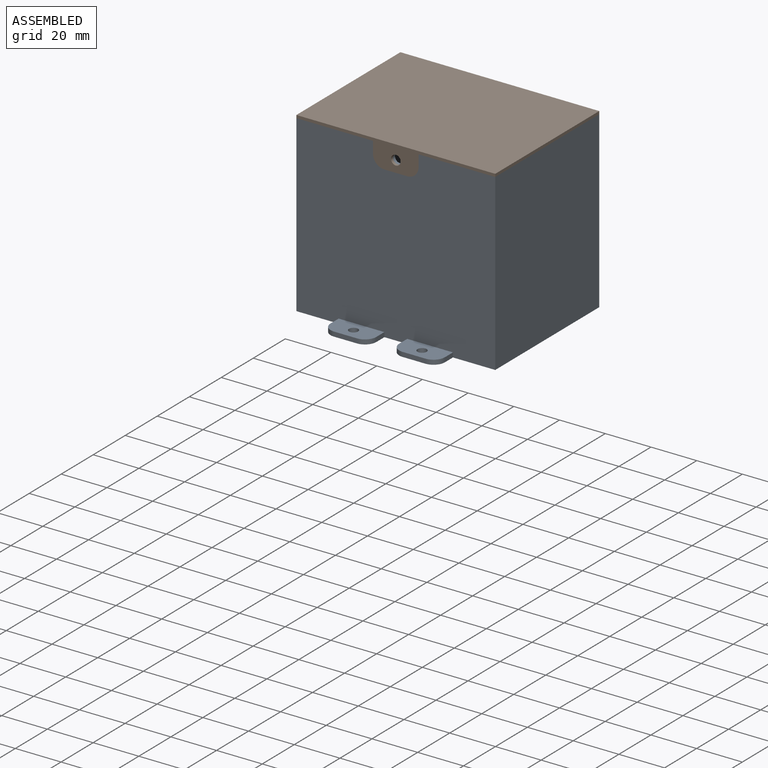
[diagram: assembled view]
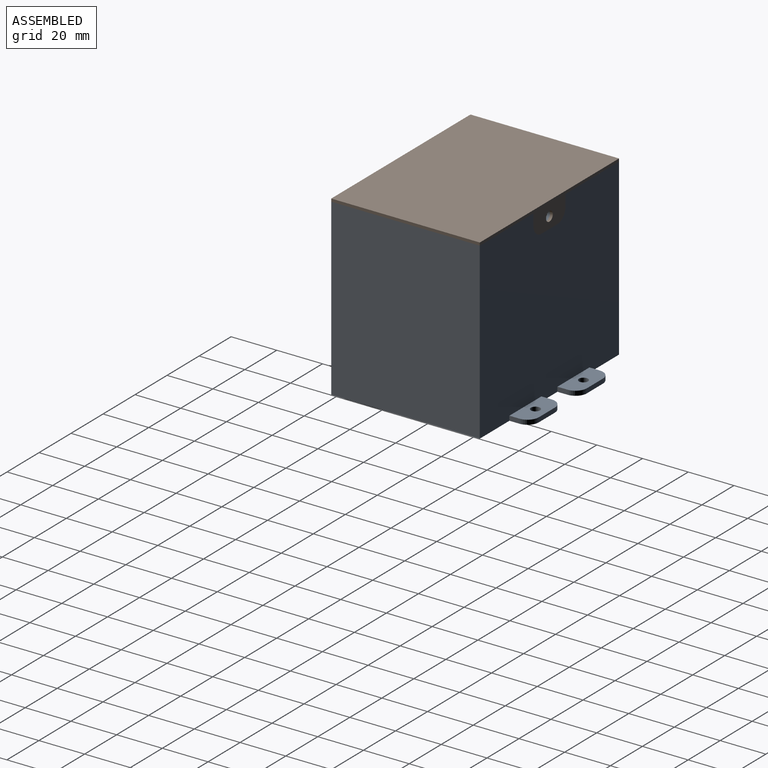
[diagram: assembled view, second angle]
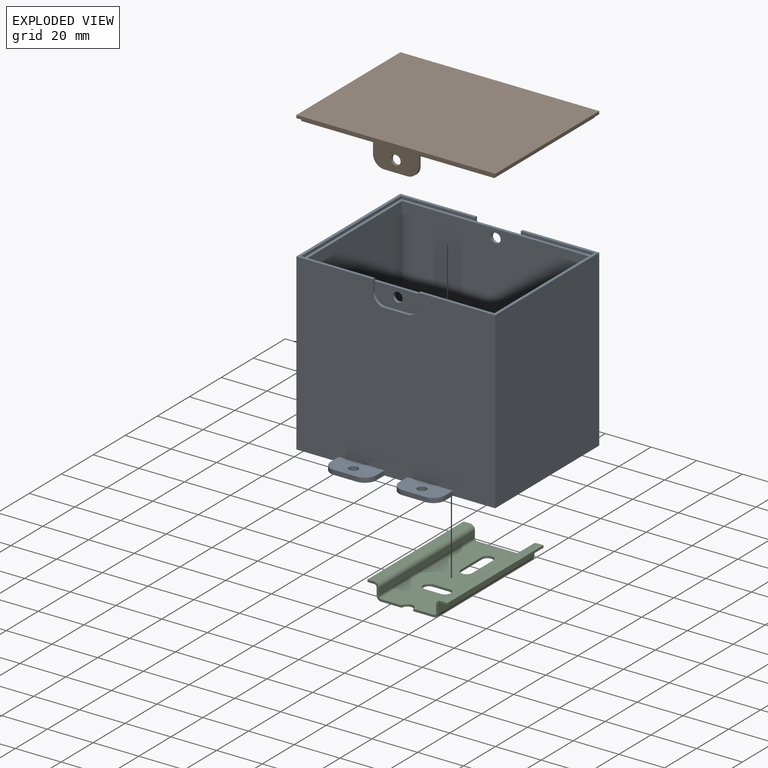
[diagram: exploded view]
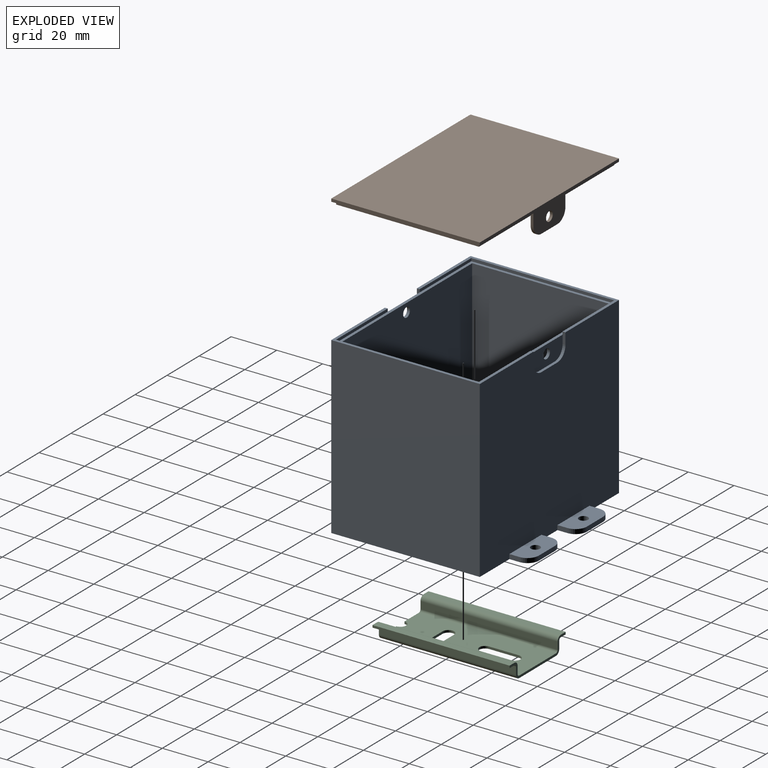
[diagram: exploded view, second angle]
ASSEMBLY  parts=3 mates=3
PART A: 61 faces, bbox 87x84.4x76.3 mm
  f0: plane 20x8.75mm, normal (0,-1,0), area 150.4mm2, adj f47,f48,f49,f50,f51,f52,f60
  f1: plane 65x33.5mm, normal (0,0,1), area 161.9mm2, adj f7,f8,f9,f41,f51,f54,f55,f57
  f2: plane 65x33.5mm, normal (0,0,1), area 161.9mm2, adj f7,f9,f10,f45,f47,f56,f58,f59
  f3: plane 82x72.25mm, normal (0,-1,0), area 5910.6mm2, adj f4,f6,f12,f53,f60
  f4: plane 72.25x60mm, normal (-1,0,0), area 4335mm2, adj f3,f5,f12,f60
  f5: plane 82x72.25mm, normal (0,1,0), area 5910.6mm2, adj f4,f6,f12,f52,f60
  f6: plane 72.25x60mm, normal (1,0,0), area 4335mm2, adj f3,f5,f12,f60
  f7: plane 87x76.3mm, normal (0,1,0), area 6368.8mm2, adj f1,f2,f8,f10,f11,f13,f14,f15
  f8: plane 76.3x65mm, normal (1,0,0), area 4959.5mm2, adj f1,f7,f9,f11
  f9: plane 87x76.3mm, normal (0,-1,0), area 6368.8mm2, adj f1,f2,f8,f10,f11,f28,f29,f33
  f10: plane 76.3x65mm, normal (-1,0,0), area 4959.5mm2, adj f2,f7,f9,f11
  f11: plane 87x84.4mm, normal (0,0,-1), area 6337.8mm2, adj f7,f8,f9,f10,f13,f14,f16,f17
  f12: plane 82x60mm, normal (0,0,1), area 4920mm2, adj f3,f4,f5,f6
  f13: plane 4.4x2mm, normal (1,0,0), area 8.8mm2, adj f7,f11,f15,f16
  f14: plane 4.4x2mm, normal (-1,0,0), area 8.8mm2, adj f7,f11,f15,f18
  f15: plane 20x9.4mm, normal (0,0,1), area 164.7mm2, adj f7,f13,f14,f16,f17,f18,f19
  f16: cylinder r=5mm len=5mm, axis (0,0,-1), area 15.7mm2, adj f11,f13,f15,f17
  f17: plane 10x2mm, normal (0,1,0), area 20mm2, adj f11,f15,f16,f18
  f18: cylinder r=5mm len=5mm, axis (0,0,-1), area 15.7mm2, adj f11,f14,f15,f17
  f19: cylinder r=2mm len=4mm, axis (0,0,-1), area 25.1mm2, adj f11,f15
  f20: plane 20x9.4mm, normal (0,0,1), area 164.7mm2, adj f7,f21,f22,f23,f24,f25,f26
  f21: plane 4.4x2mm, normal (-1,0,0), area 8.8mm2, adj f7,f11,f20,f23
  f22: plane 4.4x2mm, normal (1,0,0), area 8.8mm2, adj f7,f11,f20,f24
  f23: cylinder r=5mm len=5mm, axis (0,0,-1), area 15.7mm2, adj f11,f20,f21,f26
  f24: cylinder r=5mm len=5mm, axis (0,0,-1), area 15.7mm2, adj f11,f20,f22,f26
  f25: cylinder r=2mm len=4mm, axis (0,0,-1), area 25.1mm2, adj f11,f20
  f26: plane 10x2mm, normal (0,1,0), area 20mm2, adj f11,f20,f23,f24
  f27: cylinder r=5mm len=5mm, axis (0,0,-1), area 15.7mm2, adj f11,f28,f32,f33
  f28: plane 5x2mm, normal (1,0,0), area 10mm2, adj f9,f11,f27,f33
  f29: plane 5x2mm, normal (-1,0,0), area 10mm2, adj f9,f11,f30,f33
  f30: cylinder r=5mm len=5mm, axis (0,0,-1), area 15.7mm2, adj f11,f29,f32,f33
  f31: cylinder r=2mm len=4mm, axis (0,0,-1), area 25.1mm2, adj f11,f33
  f32: plane 10x2mm, normal (0,-1,0), area 20mm2, adj f11,f27,f30,f33
  f33: plane 20x10mm, normal (0,0,1), area 176.7mm2, adj f9,f27,f28,f29,f30,f31,f32
  f34: plane 5x2mm, normal (-1,0,0), area 10mm2, adj f9,f11,f35,f40
  f35: cylinder r=5mm len=5mm, axis (0,0,-1), area 15.7mm2, adj f11,f34,f36,f40
  f36: plane 10x2mm, normal (0,-1,0), area 20mm2, adj f11,f35,f37,f40
  f37: cylinder r=5mm len=5mm, axis (0,0,-1), area 15.7mm2, adj f11,f36,f38,f40
  f38: plane 5x2mm, normal (1,0,0), area 10mm2, adj f9,f11,f37,f40
  f39: cylinder r=2mm len=4mm, axis (0,0,-1), area 25.1mm2, adj f11,f40
  f40: plane 20x10mm, normal (0,0,1), area 176.7mm2, adj f9,f34,f35,f36,f37,f38,f39
  f41: plane 5x1.25mm, normal (-1,0,0), area 6.2mm2, adj f1,f7,f42,f46,f54
  f42: cylinder r=5mm len=5mm, axis (0,1,0), area 9.8mm2, adj f7,f41,f43,f46
  f43: plane 10x1.25mm, normal (0,0,1), area 12.5mm2, adj f7,f42,f44,f46
  f44: cylinder r=5mm len=5mm, axis (0,1,0), area 9.8mm2, adj f7,f43,f45,f46
  f45: plane 5x1.25mm, normal (1,0,0), area 6.2mm2, adj f2,f7,f44,f46,f58
  f46: plane 20x8.75mm, normal (0,1,0), area 150.4mm2, adj f41,f42,f43,f44,f45,f53,f60
  f47: plane 5x1.25mm, normal (1,0,0), area 6.3mm2, adj f0,f2,f9,f48,f56
  f48: cylinder r=5mm len=5mm, axis (0,-1,0), area 9.8mm2, adj f0,f9,f47,f49
  f49: plane 10x1.25mm, normal (0,0,1), area 12.5mm2, adj f0,f9,f48,f50
  f50: cylinder r=5mm len=5mm, axis (0,-1,0), area 9.8mm2, adj f0,f9,f49,f51
  f51: plane 5x1.25mm, normal (-1,0,0), area 6.3mm2, adj f0,f1,f9,f50,f55
  f52: cylinder r=2.1mm len=4.2mm, axis (0,-1,0), area 16.5mm2, adj f0,f5
  f53: cylinder r=2.1mm len=4.2mm, axis (0,-1,0), area 16.5mm2, adj f3,f46
  f54: plane 32.25x1.25mm, normal (0,-1,0), area 40.3mm2, adj f1,f41,f57,f60
  f55: plane 32.25x1.25mm, normal (0,1,0), area 40.3mm2, adj f1,f51,f57,f60
  f56: plane 32.25x1.25mm, normal (0,1,0), area 40.3mm2, adj f2,f47,f59,f60
  f57: plane 62.5x1.25mm, normal (-1,0,0), area 78.1mm2, adj f1,f54,f55,f60
  f58: plane 32.25x1.25mm, normal (0,-1,0), area 40.3mm2, adj f2,f45,f59,f60
  f59: plane 62.5x1.25mm, normal (1,0,0), area 78.1mm2, adj f2,f56,f58,f60
  f60: plane 84.5x62.5mm, normal (0,0,1), area 361.3mm2, adj f0,f3,f4,f5,f6,f46,f54,f55
PART B: 28 faces, bbox 87x65x11.3 mm
  f0: plane 65x33.5mm, normal (0,0,-1), area 161.9mm2, adj f1,f4,f7,f9,f11,f12,f19,f21
  f1: plane 32.25x1.25mm, normal (0,1,0), area 40.3mm2, adj f0,f4,f8,f21
  f2: plane 32.25x1.25mm, normal (0,-1,0), area 40.3mm2, adj f3,f6,f8,f15
  f3: plane 65x33.5mm, normal (0,0,-1), area 161.9mm2, adj f2,f5,f6,f9,f10,f11,f15,f20
  f4: plane 62.5x1.25mm, normal (1,0,0), area 78.1mm2, adj f0,f1,f7,f8
  f5: plane 32.25x1.25mm, normal (0,1,0), area 40.3mm2, adj f3,f6,f8,f20
  f6: plane 62.5x1.25mm, normal (-1,0,0), area 78.1mm2, adj f2,f3,f5,f8
  f7: plane 32.25x1.25mm, normal (0,-1,0), area 40.3mm2, adj f0,f4,f8,f19
  f8: plane 84.5x62.5mm, normal (0,0,-1), area 5281.2mm2, adj f1,f2,f4,f5,f6,f7,f14,f25
  f9: plane 87x11.25mm, normal (0,1,0), area 284.2mm2, adj f0,f3,f10,f12,f13,f20,f21,f22
  f10: plane 65x1.25mm, normal (-1,0,0), area 81.3mm2, adj f3,f9,f11,f13
  f11: plane 87x11.25mm, normal (0,-1,0), area 284.2mm2, adj f0,f3,f10,f12,f13,f15,f16,f17
  f12: plane 65x1.25mm, normal (1,0,0), area 81.3mm2, adj f0,f9,f11,f13
  f13: plane 87x65mm, normal (0,0,1), area 5655mm2, adj f9,f10,f11,f12
  f14: plane 20x8.75mm, normal (0,1,0), area 150.4mm2, adj f8,f15,f16,f17,f18,f19,f27
  f15: plane 5x1.25mm, normal (-1,0,0), area 6.3mm2, adj f2,f3,f11,f14,f16
  f16: cylinder r=5mm len=5mm, axis (0,1,0), area 9.8mm2, adj f11,f14,f15,f17
  f17: plane 10x1.25mm, normal (0,0,-1), area 12.5mm2, adj f11,f14,f16,f18
  f18: cylinder r=5mm len=5mm, axis (0,1,0), area 9.8mm2, adj f11,f14,f17,f19
  f19: plane 5x1.25mm, normal (1,0,0), area 6.3mm2, adj f0,f7,f11,f14,f18
  f20: plane 5x1.25mm, normal (-1,0,0), area 6.3mm2, adj f3,f5,f9,f24,f25
  f21: plane 5x1.25mm, normal (1,0,0), area 6.3mm2, adj f0,f1,f9,f22,f25
  f22: cylinder r=5mm len=5mm, axis (0,-1,0), area 9.8mm2, adj f9,f21,f23,f25
  f23: plane 10x1.25mm, normal (0,0,-1), area 12.5mm2, adj f9,f22,f24,f25
  f24: cylinder r=5mm len=5mm, axis (0,-1,0), area 9.8mm2, adj f9,f20,f23,f25
  f25: plane 20x8.75mm, normal (0,-1,0), area 150.4mm2, adj f8,f20,f21,f22,f23,f24,f26
  f26: cylinder r=2.1mm len=4.2mm, axis (0,-1,0), area 16.5mm2, adj f9,f25
  f27: cylinder r=2.1mm len=4.2mm, axis (0,1,0), area 16.5mm2, adj f11,f14
PART C: 32 faces, bbox 35x7.2x60 mm
  f0: plane 60x1mm, normal (-1,0,0), area 60mm2, adj f1,f19,f29,f30
  f1: plane 60x3mm, normal (0,1,0), area 180mm2, adj f0,f5,f29,f30
  f2: plane 60x3mm, normal (0,1,0), area 180mm2, adj f3,f10,f29,f31
  f3: plane 60x1mm, normal (1,0,0), area 60mm2, adj f2,f11,f29,f31
  f4: plane 60x23mm, normal (0,1,0), area 1230.9mm2, adj f7,f8,f20,f21,f22,f23,f24,f25
  f5: cylinder r=2mm len=60mm, axis (0,0,1), area 188.5mm2, adj f1,f6,f29,f30
  f6: plane 60x3.2mm, normal (1,0,0), area 192mm2, adj f5,f7,f29,f30
  f7: cylinder r=1mm len=60mm, axis (0,0,1), area 94.2mm2, adj f4,f6,f29,f30
  f8: cylinder r=1mm len=60mm, axis (0,0,1), area 94.2mm2, adj f4,f9,f29,f31
  f9: plane 60x3.2mm, normal (-1,0,0), area 192mm2, adj f8,f10,f29,f31
  f10: cylinder r=2mm len=60mm, axis (0,0,1), area 188.5mm2, adj f2,f9,f29,f31
  f11: plane 60x3mm, normal (0,-1,0), area 180mm2, adj f3,f12,f29,f31
  f12: cylinder r=1mm len=60mm, axis (0,0,1), area 94.2mm2, adj f11,f13,f29,f31
  f13: plane 60x3.2mm, normal (1,0,0), area 192mm2, adj f12,f14,f29,f31
  f14: cylinder r=2mm len=60mm, axis (0,0,1), area 188.5mm2, adj f13,f15,f29,f31
  f15: plane 60x23mm, normal (0,-1,0), area 1230.9mm2, adj f14,f16,f20,f21,f22,f23,f24,f25
  f16: cylinder r=2mm len=60mm, axis (0,0,1), area 188.5mm2, adj f15,f17,f29,f30
  f17: plane 60x3.2mm, normal (-1,0,0), area 192mm2, adj f16,f18,f29,f30
  f18: cylinder r=1mm len=60mm, axis (0,0,1), area 94.2mm2, adj f17,f19,f29,f30
  f19: plane 60x3mm, normal (0,-1,0), area 180mm2, adj f0,f18,f29,f30
  f20: cylinder r=2.5mm len=5mm, axis (0,-1,0), area 7.9mm2, adj f4,f15,f30,f31
  f21: cylinder r=2.5mm len=5mm, axis (0,-1,0), area 7.9mm2, adj f4,f15,f22,f24
  f22: plane 7x1mm, normal (0,0,-1), area 7mm2, adj f4,f15,f21,f23
  f23: cylinder r=2.5mm len=5mm, axis (0,-1,0), area 7.9mm2, adj f4,f15,f22,f24
  f24: plane 7x1mm, normal (0,0,1), area 7mm2, adj f4,f15,f21,f23
  f25: cylinder r=2.5mm len=5mm, axis (0,-1,0), area 7.9mm2, adj f4,f15,f26,f28
  f26: plane 13x1mm, normal (1,0,0), area 13mm2, adj f4,f15,f25,f27
  f27: cylinder r=2.5mm len=5mm, axis (0,-1,0), area 7.9mm2, adj f4,f15,f26,f28
  f28: plane 13x1mm, normal (-1,0,0), area 13mm2, adj f4,f15,f25,f27
  f29: plane 35x7.2mm, normal (0,0,-1), area 44.8mm2, adj f0,f1,f2,f3,f4,f5,f6,f7
  f30: plane 15x7.2mm, normal (0,0,1), area 19.9mm2, adj f0,f1,f4,f5,f6,f7,f15,f16
  f31: plane 15x7.2mm, normal (0,0,1), area 19.9mm2, adj f2,f3,f4,f8,f9,f10,f11,f12
PLACE A t=(-12.31,-6.48,-53.15)mm
PLACE B t=(-122.93,-8.98,23.15)mm
PLACE C rot(axis=(1,0,0),90deg) t=(-49.81,53.3,-50.04)mm
MATE pin_slot B.f26 <-> A.f52  axis (0,-1,0) through (-53.31,54.77,18.15)mm
MATE planar B.f13 <-> B.f13  axis (0,0,1) through (-53.31,23.52,24.4)mm
MATE parallel C.f15 <-> A.f12  axis (0,0,-1) through (-49.81,23.12,-50.04)mm
